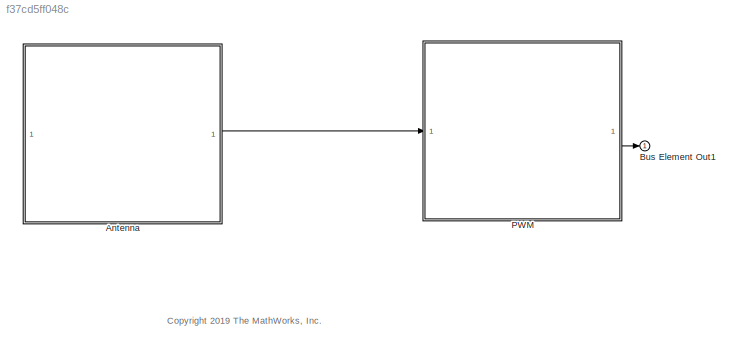
MODEL slx_f37cd5ff048c
KIND model
CONFIG AbsTol = auto
CONFIG EnableMultiTasking = off
CONFIG FixedStep = auto
CONFIG MaxStep = auto
CONFIG MinStep = auto
CONFIG RelTol = 1e-3
CONFIG SampleTimeConstraint = Unconstrained
CONFIG SolverName = VariableStepAuto
CONFIG StartTime = 0.0
CONFIG StopTime = 10.0
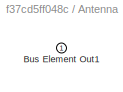
BLOCK [SubSystem] Antenna
  PortSchema = {"entries":[{"content":{"headerSize":26,"margin":15,"minimumSpacing":25,"sides":[{"content":{"connectorIds":[]},"type":"ConnectorPlacement.EquallySpacedRectSide","uuid":"a0f82e88-5275-4bb9-87fe-a49bf19782cf"},{"content":{"connectorIds":["Out1"],"side":"RIGHT"},"type":"ConnectorPlacement.EquallySpacedRectSide","uuid":"4b3945c4-3891-41a7-b741-bb467a4ccb5a"},{"content":{"connectorIds":[],"side":"TOP"...<+285ch>
BLOCK [Outport] Antenna/Bus Element Out1
BLOCK [Outport] Bus Element Out1
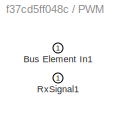
BLOCK [SubSystem] PWM
  PortSchema = {"entries":[{"content":{"headerSize":26,"margin":15,"minimumSpacing":25,"sides":[{"content":{"connectorIds":["In1"]},"type":"ConnectorPlacement.EquallySpacedRectSide","uuid":"a0f82e88-5275-4bb9-87fe-a49bf19782cf"},{"content":{"connectorIds":["Out1"],"side":"RIGHT"},"type":"ConnectorPlacement.EquallySpacedRectSide","uuid":"4b3945c4-3891-41a7-b741-bb467a4ccb5a"},{"content":{"connectorIds":[],"side":...<+290ch>
BLOCK [Inport] PWM/Bus Element In1
BLOCK [Outport] PWM/RxSignal1
ANNOTATION (root): <copyright redacted>
LINE Antenna:1 -> PWM:1
LINE PWM:1 -> Bus Element Out1:1
